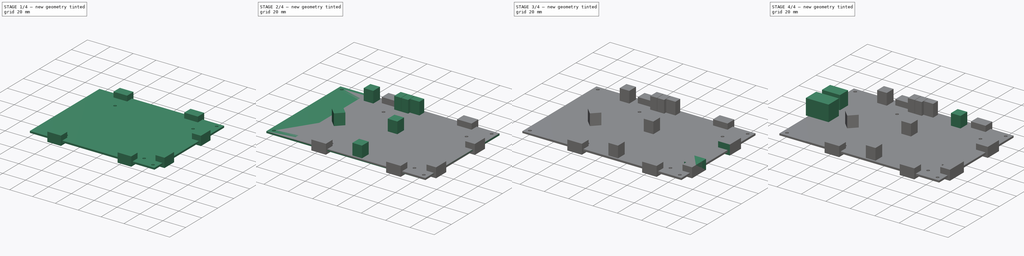
[diagram: build sequence overview — one tinted view per stage of 4, left to right]
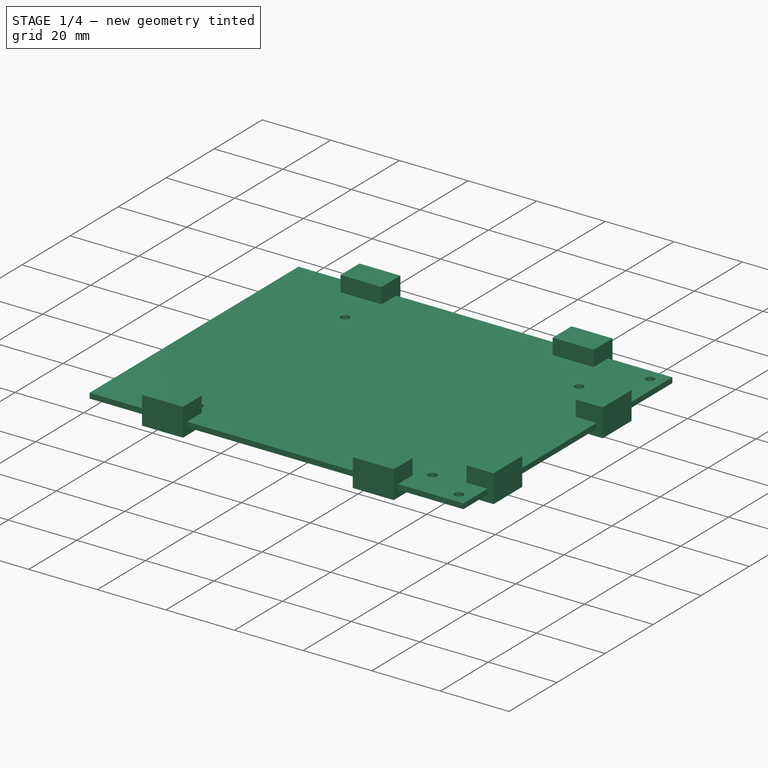
[diagram: stage 1 of 4 — iso view after this stage's code; geometry added in this stage tinted green]
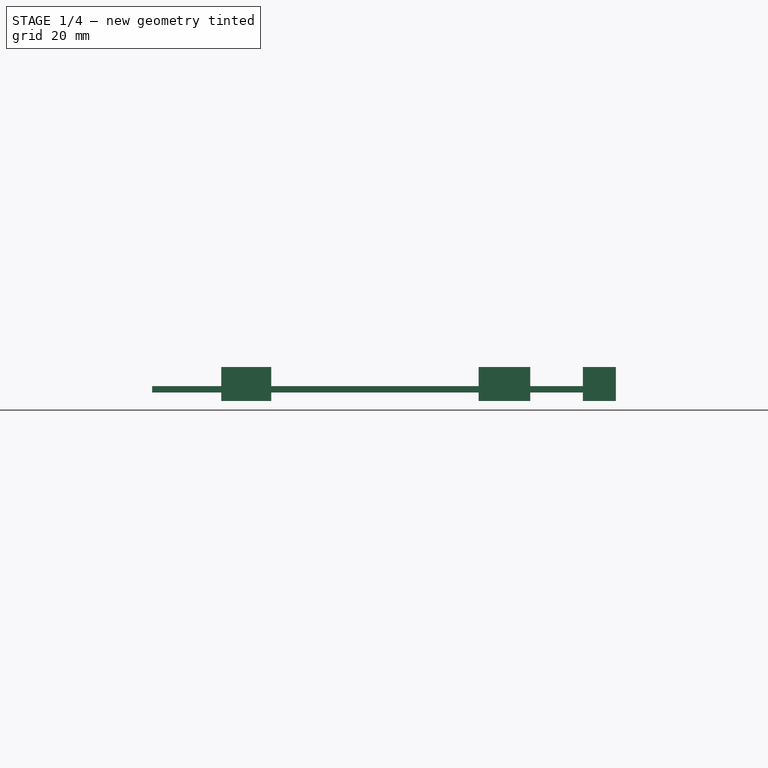
[diagram: stage 1 of 4 — front view after this stage's code; geometry added in this stage tinted green]
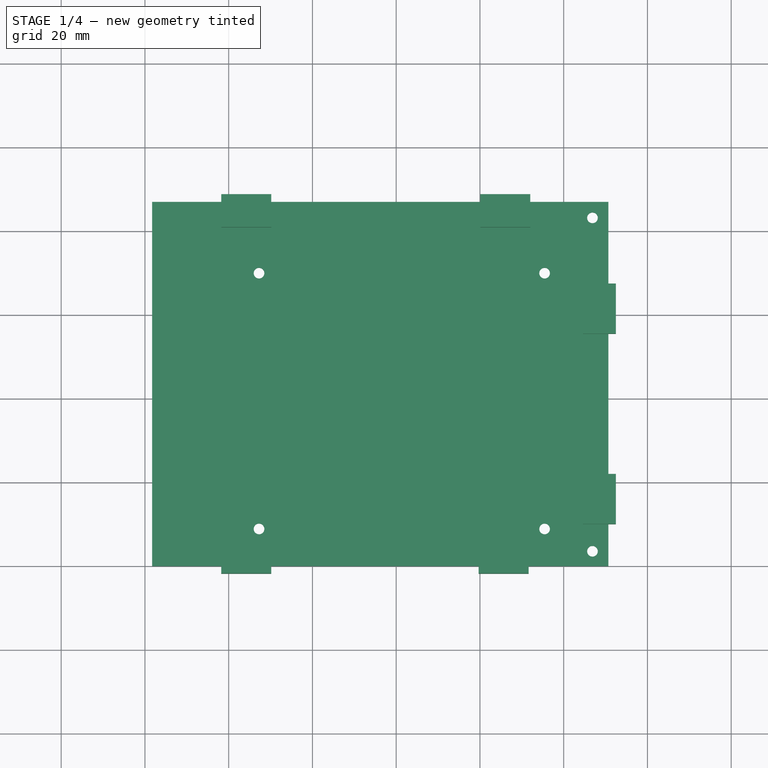
[diagram: stage 1 of 4 — top view after this stage's code; geometry added in this stage tinted green]
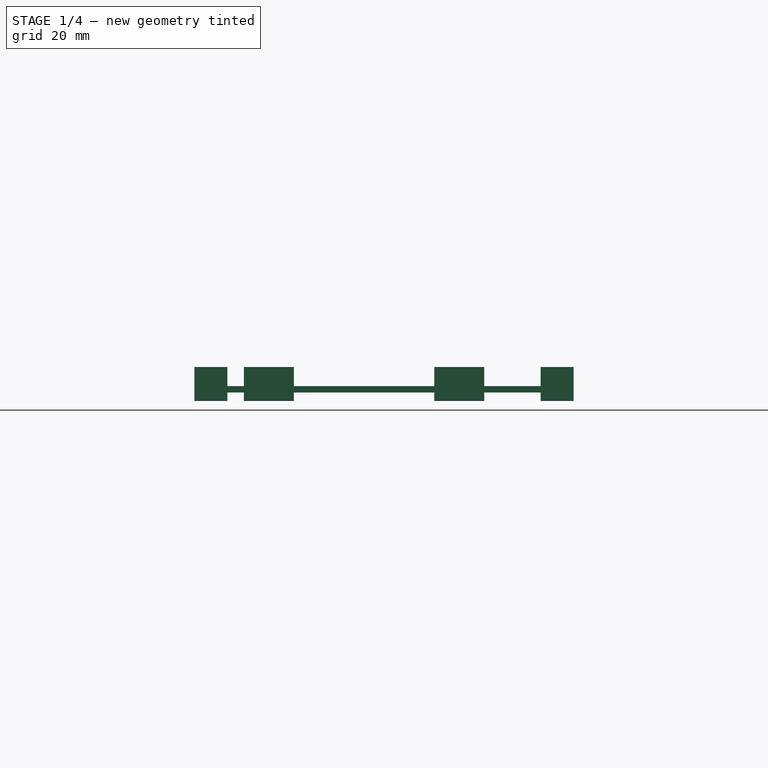
[diagram: stage 1 of 4 — right view after this stage's code; geometry added in this stage tinted green]
FCSTD DOCUMENT  (FreeCAD 1.0R38641 +678 (Git))
Label: BladeRFCase
License: All rights reserved
LicenseURL: https://en.wikipedia.org/wiki/All_rights_reserved
objects: PartDesign::Pad×11, Sketcher::SketchObject×9, PartDesign::Body×2
note: 53 computed .brp shape members not serialized (recipe doc carries the construction recipe); baked Part::Feature solids carry a one-line shape summary decoded from their .brp

FEATURE [PartDesign::Body] Body  label="ReferenceBody-x40"
  AllowCompound = false
  Group = -> [Sketch,Pad,Sketch001,Pad001,Pad002,Sketch002,Pad003,Sketch003,Pad004,Sketch004,Pad005]
  Origin = -> Origin
  Tip = -> Pad005
FEATURE [Sketcher::SketchObject] Sketch005
  ArcFitTolerance = 1e-06
  AttachmentSupport = -> [XY_Plane001]
  FullyConstrained = true
  MakeInternals = false
  MapMode = 5
  sketch-geometry (10):
    g0: LineSegment StartX=21.717 StartY=86.995 StartZ=0 EndX=21.717 EndY=0 EndZ=0
    g1: LineSegment StartX=21.717 StartY=0 StartZ=0 EndX=130.683 EndY=0 EndZ=0
    g2: LineSegment StartX=130.683 StartY=0 StartZ=0 EndX=130.683 EndY=86.995 EndZ=0
    g3: LineSegment StartX=130.683 StartY=86.995 StartZ=0 EndX=21.717 EndY=86.995 EndZ=0
    g4: Circle CenterX=115.443 CenterY=8.89 CenterZ=0 NormalX=0 NormalY=0 NormalZ=1 AngleXU=0 Radius=1.27
    g5: Circle CenterX=115.443 CenterY=69.977 CenterZ=0 NormalX=0 NormalY=0 NormalZ=1 AngleXU=0 Radius=1.27
    g6: Circle CenterX=47.244 CenterY=69.977 CenterZ=0 NormalX=0 NormalY=0 NormalZ=1 AngleXU=0 Radius=1.27
    g7: Circle CenterX=47.244 CenterY=8.89 CenterZ=0 NormalX=0 NormalY=0 NormalZ=1 AngleXU=0 Radius=1.27
    g8: Circle CenterX=126.873 CenterY=83.185 CenterZ=0 NormalX=0 NormalY=0 NormalZ=1 AngleXU=0 Radius=1.27
    g9: Circle CenterX=126.873 CenterY=3.556 CenterZ=0 NormalX=0 NormalY=0 NormalZ=1 AngleXU=0 Radius=1.27
  constraints (30):
    c: Coincident(g0,g1)
    c: Coincident(g1,g2)
    c: Coincident(g2,g3)
    c: Coincident(g3,g0)
    c: Vertical(g0)
    c: Vertical(g2)
    c: Horizontal(g1)
    c: Horizontal(g3)
    c: Vertical(g5,g4)
    c: Vertical(g7,g6)
    c: Horizontal(g6,g5)
    c: Horizontal(g4,g7)
    c: Equal(g7,g6)
    c: DistanceX(g6,g5) = 68.199
    c: DistanceY(g7,g6) = 61.087
    c: Diameter(g6) = 2.54
    c: Equal(g5,g6)
    c: Equal(g7,g4)
    c: DistanceX(g3,g3) = 108.966
    c: DistanceY(g2,g2) = 86.995
    c: Equal(g9,g4)
    c: Equal(g8,g5)
    c: DistanceX(g5,g8) = 11.43
    c: DistanceY(g5,g8) = 13.208
    c: Vertical(g9,g8)
    c: DistanceY(g9,g8) = 79.629
    c: DistanceY(g8,g2) = 3.81
    c: DistanceX(g8,g2) = 3.81
    c: DistanceX(g-1,g1) = 130.683
    c: PointOnObject(g1,g-1)
FEATURE [PartDesign::Pad] Pad006  label="PRB-RF4"
  Direction = (0,0,1)
  Length = 1.524
  Length2 = 10
  Profile = -> Sketch005
  ReferenceAxis = -> Sketch005 [N_Axis]
  Refine = true
  Suppressed = false
  Type = 0
FEATURE [Sketcher::SketchObject] Sketch006
  ArcFitTolerance = 1e-06
  AttachmentSupport = -> [Pad006]
  ExternalGeometry = -> [Pad006]
  FullyConstrained = true
  MakeInternals = false
  MapMode = 5
  Placement = pos=(0,0,1.524) rot=(0,0,1;0rad)
  sketch-geometry (27):
    g0: LineSegment StartX=38.227 StartY=88.773 StartZ=0 EndX=38.227 EndY=80.899 EndZ=0
    g1: LineSegment StartX=38.227 StartY=80.899 StartZ=0 EndX=50.165 EndY=80.899 EndZ=0
    g2: LineSegment StartX=50.165 StartY=80.899 StartZ=0 EndX=50.165 EndY=88.773 EndZ=0
    g3: LineSegment StartX=50.165 StartY=88.773 StartZ=0 EndX=38.227 EndY=88.773 EndZ=0
    g4: LineSegment StartX=100.076 StartY=88.773 StartZ=0 EndX=100.076 EndY=80.899 EndZ=0
    g5: LineSegment StartX=100.076 StartY=80.899 StartZ=0 EndX=112.014 EndY=80.899 EndZ=0
    g6: LineSegment StartX=112.014 StartY=80.899 StartZ=0 EndX=112.014 EndY=88.773 EndZ=0
    g7: LineSegment StartX=112.014 StartY=88.773 StartZ=0 EndX=100.076 EndY=88.773 EndZ=0
    g8: LineSegment StartX=124.587 StartY=67.437 StartZ=0 EndX=124.587 EndY=55.499 EndZ=0
    g9: LineSegment StartX=124.587 StartY=55.499 StartZ=0 EndX=132.461 EndY=55.499 EndZ=0
    g10: LineSegment StartX=132.461 StartY=55.499 StartZ=0 EndX=132.461 EndY=67.437 EndZ=0
    g11: LineSegment StartX=132.461 StartY=67.437 StartZ=0 EndX=124.587 EndY=67.437 EndZ=0
    g12: LineSegment StartX=124.587 StartY=21.971 StartZ=0 EndX=124.587 EndY=10.033 EndZ=0
    g13: LineSegment StartX=124.587 StartY=10.033 StartZ=0 EndX=132.461 EndY=10.033 EndZ=0
    g14: LineSegment StartX=132.461 StartY=10.033 StartZ=0 EndX=132.461 EndY=21.971 EndZ=0
    g15: LineSegment StartX=132.461 StartY=21.971 StartZ=0 EndX=124.587 EndY=21.971 EndZ=0
    g16: LineSegment StartX=99.695 StartY=6.096 StartZ=0 EndX=99.695 EndY=-1.778 EndZ=0
    g17: LineSegment StartX=99.695 StartY=-1.778 StartZ=0 EndX=111.633 EndY=-1.778 EndZ=0
    g18: LineSegment StartX=111.633 StartY=-1.778 StartZ=0 EndX=111.633 EndY=6.096 EndZ=0
    g19: LineSegment StartX=111.633 StartY=6.096 StartZ=0 EndX=99.695 EndY=6.096 EndZ=0
    g20: LineSegment StartX=38.227 StartY=6.096 StartZ=0 EndX=38.227 EndY=-1.778 EndZ=0
    g21: LineSegment StartX=38.227 StartY=-1.778 StartZ=0 EndX=50.165 EndY=-1.778 EndZ=0
    g22: LineSegment StartX=50.165 StartY=-1.778 StartZ=0 EndX=50.165 EndY=6.096 EndZ=0
    g23: LineSegment StartX=50.165 StartY=6.096 StartZ=0 EndX=38.227 EndY=6.096 EndZ=0
    g24: LineSegment [constr] StartX=111.633 StartY=-1.778 StartZ=0 EndX=111.633 EndY=0 EndZ=0
    g25: LineSegment [constr] StartX=38.227 StartY=88.773 StartZ=0 EndX=38.227 EndY=86.995 EndZ=0
    g26: LineSegment [constr] StartX=132.461 StartY=67.437 StartZ=0 EndX=130.683 EndY=67.437 EndZ=0
  constraints (81):
    c: Coincident(g0,g1)
    c: Coincident(g1,g2)
    c: Coincident(g2,g3)
    c: Coincident(g3,g0)
    c: Vertical(g0)
    c: Vertical(g2)
    c: Horizontal(g1)
    c: Horizontal(g3)
    c: Coincident(g4,g5)
    c: Coincident(g5,g6)
    c: Coincident(g6,g7)
    c: Coincident(g7,g4)
    c: Vertical(g4)
    c: Vertical(g6)
    c: Horizontal(g5)
    c: Horizontal(g7)
    c: Coincident(g8,g9)
    c: Coincident(g9,g10)
    c: Coincident(g10,g11)
    c: Coincident(g11,g8)
    c: Vertical(g8)
    c: Vertical(g10)
    c: Horizontal(g9)
    c: Horizontal(g11)
    c: Coincident(g12,g13)
    c: Coincident(g13,g14)
    c: Coincident(g14,g15)
    c: Coincident(g15,g12)
    c: Vertical(g12)
    c: Vertical(g14)
    c: Horizontal(g13)
    c: Horizontal(g15)
    c: Coincident(g16,g17)
    c: Coincident(g17,g18)
    c: Coincident(g18,g19)
    c: Coincident(g19,g16)
    c: Vertical(g16)
    c: Vertical(g18)
    c: Horizontal(g17)
    c: Horizontal(g19)
    c: Coincident(g20,g21)
    c: Coincident(g21,g22)
    c: Coincident(g22,g23)
    c: Coincident(g23,g20)
    c: Vertical(g20)
    c: Vertical(g22)
    c: Horizontal(g21)
    c: Horizontal(g23)
    c: DistanceY(g10,g10) = 11.938
    c: DistanceX(g11,g11) = 7.874
    c: Equal(g11,g4)
    c: Equal(g4,g0)
    c: Equal(g0,g18)
    c: Equal(g18,g22)
    c: Equal(g21,g17)
    c: Equal(g17,g14)
    c: Equal(g14,g10)
    c: Equal(g10,g7)
    c: Equal(g7,g3)
    c: Equal(g11,g15)
    c: Horizontal(g17,g21)
    c: Coincident(g24,g17)
    c: PointOnObject(g24,g-5)
    c: Vertical(g24)
    c: Horizontal(g0,g4)
    c: Vertical(g10,g14)
    c: Coincident(g25,g0)
    c: PointOnObject(g25,g-3)
    c: Vertical(g25)
    c: Coincident(g26,g10)
    c: PointOnObject(g26,g-4)
    c: Horizontal(g26)
    c: Equal(g24,g25)
    c: Equal(g25,g26)
    c: Distance(g9,g-4) = 1.778
    c: DistanceY(g-5,g13) = 10.033
    c: DistanceY(g12,g8) = 33.528
    c: DistanceX(g1,g4) = 49.911
    c: DistanceX(g22,g16) = 49.53
    c: DistanceX(g-5,g20) = 16.51
    c: Vertical(g20,g0)
FEATURE [PartDesign::Pad] Pad007  label="SMA-H-A"
  BaseFeature = -> Pad006
  Direction = (0,0,1)
  Length = 4.572
  Length2 = 10
  Profile = -> Sketch006
  ReferenceAxis = -> Sketch006 [N_Axis]
  Refine = true
  Suppressed = false
  Type = 0
FEATURE [PartDesign::Pad] Pad008  label="SMA-H-B"
  BaseFeature = -> Pad007
  Direction = (0,0,1)
  Length = 3.556
  Length2 = 10
  Profile = -> Sketch006
  ReferenceAxis = -> Sketch006 [N_Axis]
  Refine = true
  Reversed = true
  Suppressed = false
  Type = 0
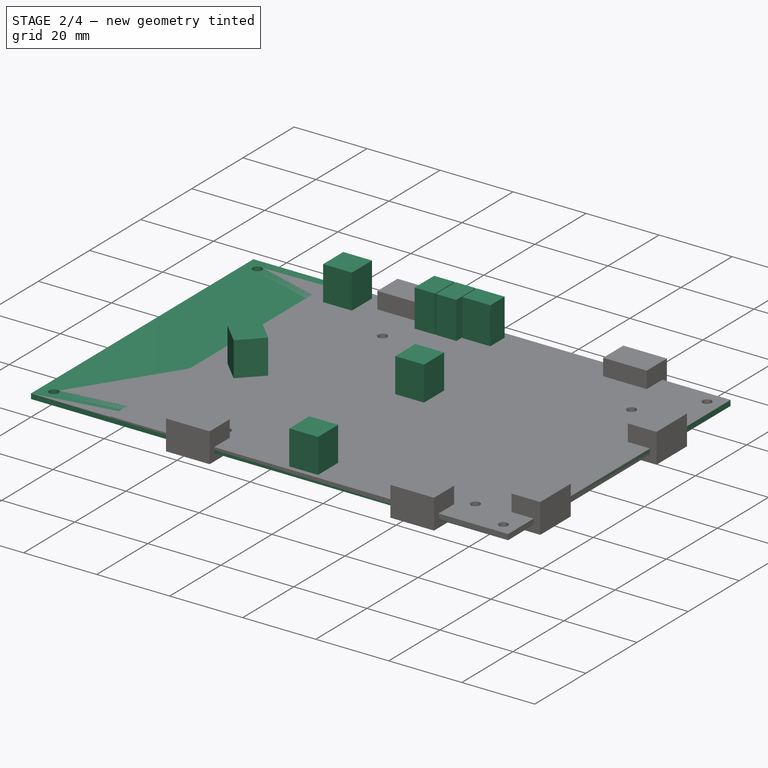
[diagram: stage 2 of 4 — iso view after this stage's code; geometry added in this stage tinted green]
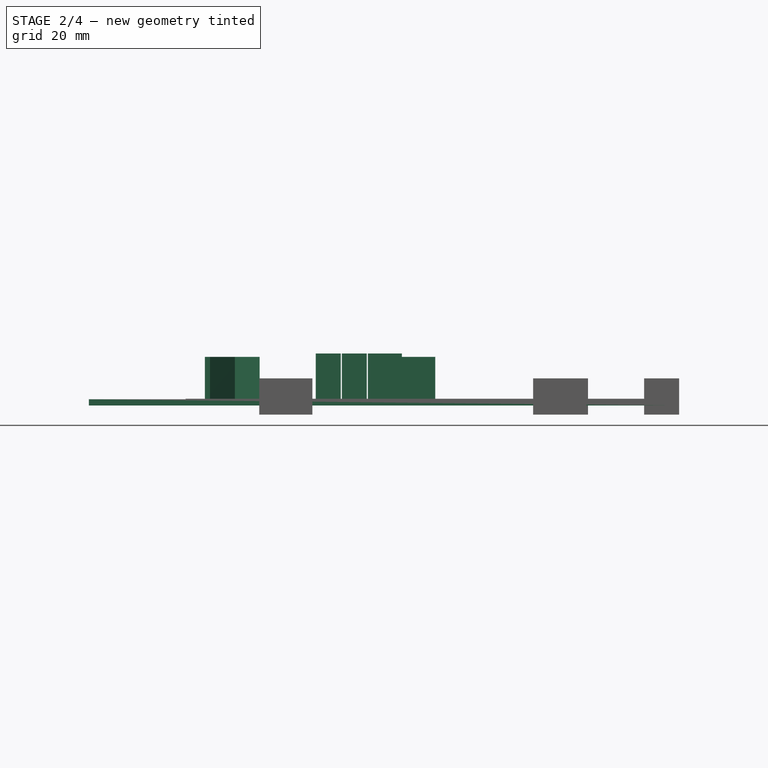
[diagram: stage 2 of 4 — front view after this stage's code; geometry added in this stage tinted green]
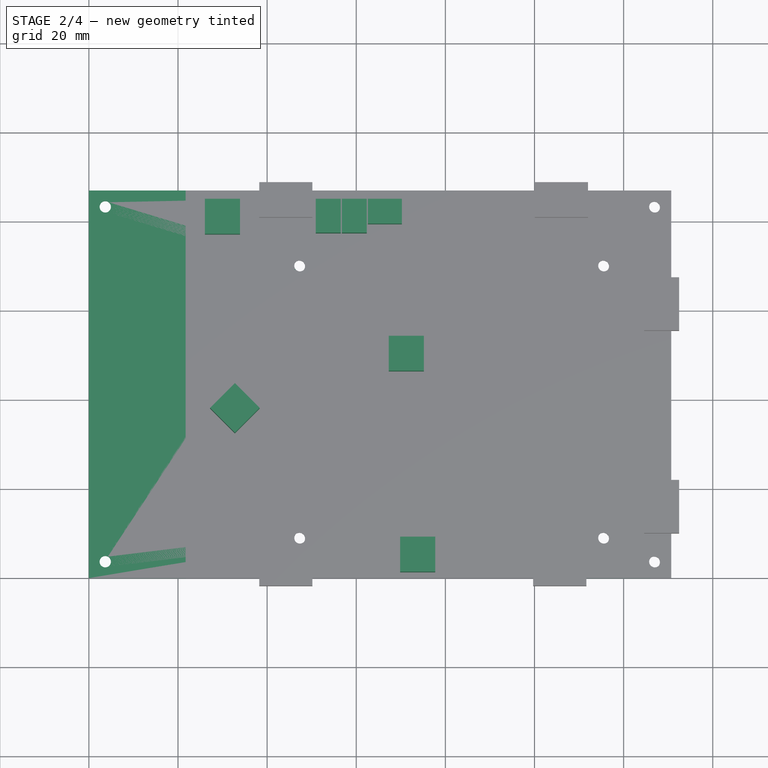
[diagram: stage 2 of 4 — top view after this stage's code; geometry added in this stage tinted green]
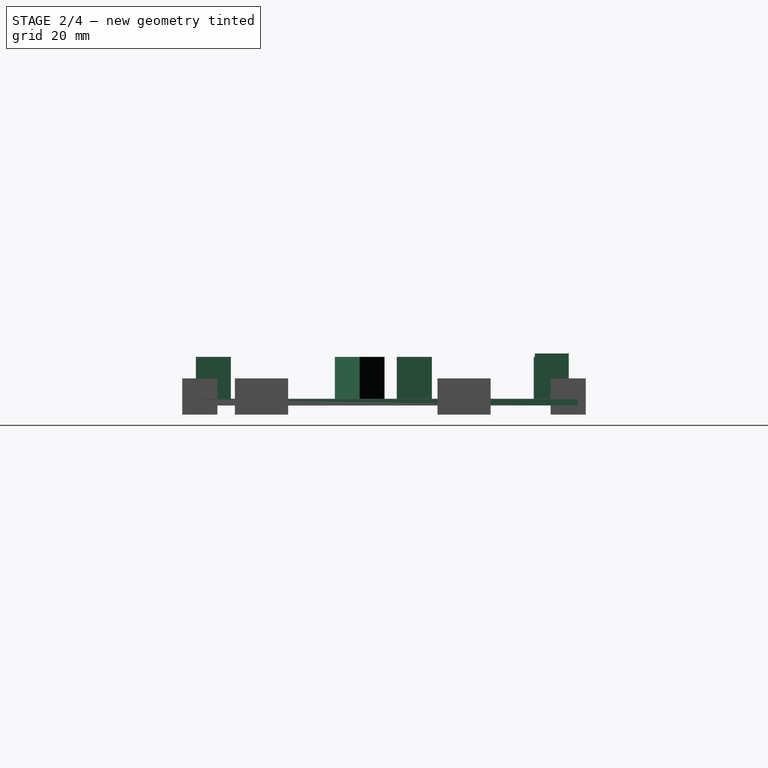
[diagram: stage 2 of 4 — right view after this stage's code; geometry added in this stage tinted green]
FEATURE [Sketcher::SketchObject] Sketch
  ArcFitTolerance = 1e-06
  AttachmentSupport = -> [XY_Plane]
  FullyConstrained = true
  MakeInternals = false
  MapMode = 5
  sketch-geometry (16):
    g0: LineSegment StartX=0 StartY=0 StartZ=0 EndX=130.683 EndY=0 EndZ=0
    g1: LineSegment StartX=130.683 StartY=0 StartZ=0 EndX=130.683 EndY=86.995 EndZ=0
    g2: LineSegment StartX=130.683 StartY=86.995 StartZ=0 EndX=0 EndY=86.995 EndZ=0
    g3: LineSegment StartX=0 StartY=86.995 StartZ=0 EndX=0 EndY=0 EndZ=0
    g4: Circle CenterX=3.683 CenterY=83.312 CenterZ=0 NormalX=0 NormalY=0 NormalZ=1 AngleXU=0 Radius=1.27
    g5: Circle CenterX=127 CenterY=83.312 CenterZ=0 NormalX=0 NormalY=0 NormalZ=1 AngleXU=0 Radius=1.27
    g6: Circle CenterX=3.683 CenterY=3.683 CenterZ=0 NormalX=0 NormalY=0 NormalZ=1 AngleXU=0 Radius=1.27
    g7: Circle CenterX=127 CenterY=3.683 CenterZ=0 NormalX=0 NormalY=0 NormalZ=1 AngleXU=0 Radius=1.27
    g8: Circle CenterX=115.57 CenterY=9.017 CenterZ=0 NormalX=0 NormalY=0 NormalZ=1 AngleXU=0 Radius=1.27
    g9: Circle CenterX=115.57 CenterY=70.104 CenterZ=0 NormalX=0 NormalY=0 NormalZ=1 AngleXU=0 Radius=1.27
    g10: Circle CenterX=47.371 CenterY=70.104 CenterZ=0 NormalX=0 NormalY=0 NormalZ=1 AngleXU=0 Radius=1.27
    g11: Circle CenterX=47.371 CenterY=9.017 CenterZ=0 NormalX=0 NormalY=0 NormalZ=1 AngleXU=0 Radius=1.27
    g12: GeomPoint X=65.3415 Y=86.995 Z=0
    g13: GeomPoint X=0 Y=43.4975 Z=0
    g14: LineSegment [constr] StartX=65.3415 StartY=86.995 StartZ=0 EndX=65.3415 EndY=0 EndZ=0
    g15: GeomPoint [constr] X=65.3415 Y=43.4975 Z=0
  constraints (39):
    c: Coincident(g0,g1)
    c: Coincident(g1,g2)
    c: Coincident(g2,g3)
    c: Coincident(g3,g0)
    c: Horizontal(g0)
    c: Horizontal(g2)
    c: Vertical(g1)
    c: Vertical(g3)
    c: Coincident(g0,g-1)
    c: DistanceX(g2,g2) = 130.683
    c: DistanceY(g3,g3) = 86.995
    c: Horizontal(g5,g4)
    c: Horizontal(g6,g7)
    c: Vertical(g4,g6)
    c: Vertical(g7,g5)
    c: Vertical(g9,g8)
    c: Vertical(g11,g10)
    c: Horizontal(g10,g9)
    c: Horizontal(g8,g11)
    c: Equal(g11,g10)
    c: Equal(g10,g4)
    c: Equal(g4,g6)
    c: Equal(g6,g8)
    c: Equal(g8,g5)
    c: Equal(g5,g7)
    c: Equal(g7,g9)
    c: Diameter(g4) = 2.54
    c: DistanceX(g4,g5) = 123.317
    c: DistanceY(g6,g4) = 79.629
    c: Symmetric(g2,g2,g12)
    c: Symmetric(g3,g3,g13)
    c: Coincident(g14,g12)
    c: Symmetric(g0,g0,g14)
    c: Symmetric(g14,g14,g15)
    c: Symmetric(g4,g7,g15)
    c: DistanceX(g10,g9) = 68.199
    c: DistanceY(g11,g10) = 61.087
    c: DistanceX(g9,g5) = 11.43
    c: DistanceY(g9,g5) = 13.208
FEATURE [PartDesign::Pad] Pad  label="PCB-FR4"
  Direction = (0,0,1)
  Length = 1.397
  Length2 = 10
  Profile = -> Sketch
  ReferenceAxis = -> Sketch [N_Axis]
  Refine = true
  Suppressed = false
  Type = 0
FEATURE [Sketcher::SketchObject] Sketch007
  ArcFitTolerance = 1e-06
  AttachmentSupport = -> [Pad008]
  ExternalGeometry = -> [Pad008]
  FullyConstrained = true
  MakeInternals = false
  MapMode = 5
  Placement = pos=(0,0,1.524) rot=(0,0,1;0rad)
  sketch-geometry (16):
    g0: LineSegment StartX=26.035 StartY=84.963 StartZ=0 EndX=26.035 EndY=77.089 EndZ=0
    g1: LineSegment StartX=26.035 StartY=77.089 StartZ=0 EndX=33.909 EndY=77.089 EndZ=0
    g2: LineSegment StartX=33.909 StartY=77.089 StartZ=0 EndX=33.909 EndY=84.963 EndZ=0
    g3: LineSegment StartX=33.909 StartY=84.963 StartZ=0 EndX=26.035 EndY=84.963 EndZ=0
    g4: LineSegment StartX=67.31 StartY=54.229 StartZ=0 EndX=67.31 EndY=46.355 EndZ=0
    g5: LineSegment StartX=67.31 StartY=46.355 StartZ=0 EndX=75.184 EndY=46.355 EndZ=0
    g6: LineSegment StartX=75.184 StartY=46.355 StartZ=0 EndX=75.184 EndY=54.229 EndZ=0
    g7: LineSegment StartX=75.184 StartY=54.229 StartZ=0 EndX=67.31 EndY=54.229 EndZ=0
    g8: LineSegment StartX=69.85 StartY=9.144 StartZ=0 EndX=69.85 EndY=1.27 EndZ=0
    g9: LineSegment StartX=69.85 StartY=1.27 StartZ=0 EndX=77.724 EndY=1.27 EndZ=0
    g10: LineSegment StartX=77.724 StartY=1.27 StartZ=0 EndX=77.724 EndY=9.144 EndZ=0
    g11: LineSegment StartX=77.724 StartY=9.144 StartZ=0 EndX=69.85 EndY=9.144 EndZ=0
    g12: LineSegment StartX=27.1982 StartY=38.029 StartZ=0 EndX=32.766 EndY=32.4612 EndZ=0
    g13: LineSegment StartX=32.766 StartY=32.4612 StartZ=0 EndX=38.3338 EndY=38.029 EndZ=0
    g14: LineSegment StartX=38.3338 StartY=38.029 StartZ=0 EndX=32.766 EndY=43.5967 EndZ=0
    g15: LineSegment StartX=32.766 StartY=43.5967 StartZ=0 EndX=27.1982 EndY=38.029 EndZ=0
  constraints (48):
    c: Coincident(g0,g1)
    c: Coincident(g1,g2)
    c: Coincident(g2,g3)
    c: Coincident(g3,g0)
    c: Vertical(g0)
    c: Vertical(g2)
    c: Horizontal(g1)
    c: Horizontal(g3)
    c: Coincident(g4,g5)
    c: Coincident(g5,g6)
    c: Coincident(g6,g7)
    c: Coincident(g7,g4)
    c: Vertical(g4)
    c: Vertical(g6)
    c: Horizontal(g5)
    c: Horizontal(g7)
    c: Coincident(g8,g9)
    c: Coincident(g9,g10)
    c: Coincident(g10,g11)
    c: Coincident(g11,g8)
    c: Vertical(g8)
    c: Vertical(g10)
    c: Horizontal(g9)
    c: Horizontal(g11)
    c: Equal(g3,g0)
    c: Equal(g7,g4)
    c: Equal(g11,g8)
    c: DistanceX(g3,g3) = 7.874
    c: Equal(g7,g3)
    c: DistanceY(g9,g5) = 45.085
    c: Coincident(g12,g13)
    c: Coincident(g13,g14)
    c: Coincident(g14,g15)
    c: Coincident(g15,g12)
    c: Equal(g15,g12)
    c: Perpendicular(g15,g14)
    c: Perpendicular(g12,g13)
    c: Perpendicular(g14,g13)
    c: Equal(g14,g3)
    c: Vertical(g12,g14)
    c: Distance(g0,g-3) = 2.032
    c: Distance(g8,g-4) = 1.27
    c: Equal(g11,g7)
    c: Distance(g9,g-5) = 21.971
    c: Distance(g12,g-6) = 11.049
    c: Distance(g0,g-6) = 4.318
    c: Distance(g12,g-1) = 32.4612
    c: DistanceX(g5,g10) = 2.54
FEATURE [PartDesign::Pad] Pad009  label="SMA-V"
  BaseFeature = -> Pad008
  Direction = (0,0,1)
  Length = 9.398
  Length2 = 10
  Profile = -> Sketch007
  ReferenceAxis = -> Sketch007 [N_Axis]
  Refine = true
  Suppressed = false
  Type = 0
FEATURE [Sketcher::SketchObject] Sketch008
  ArcFitTolerance = 1e-06
  AttachmentSupport = -> [Pad009]
  ExternalGeometry = -> [Pad009]
  FullyConstrained = true
  MakeInternals = false
  MapMode = 5
  Placement = pos=(0,0,1.524) rot=(0,0,1;0rad)
  sketch-geometry (12):
    g0: LineSegment StartX=50.927 StartY=84.963 StartZ=0 EndX=50.927 EndY=77.343 EndZ=0
    g1: LineSegment StartX=50.927 StartY=77.343 StartZ=0 EndX=56.515 EndY=77.343 EndZ=0
    g2: LineSegment StartX=56.515 StartY=77.343 StartZ=0 EndX=56.515 EndY=84.963 EndZ=0
    g3: LineSegment StartX=56.515 StartY=84.963 StartZ=0 EndX=50.927 EndY=84.963 EndZ=0
    g4: LineSegment StartX=56.769 StartY=84.963 StartZ=0 EndX=56.769 EndY=77.343 EndZ=0
    g5: LineSegment StartX=56.769 StartY=77.343 StartZ=0 EndX=62.357 EndY=77.343 EndZ=0
    g6: LineSegment StartX=62.357 StartY=77.343 StartZ=0 EndX=62.357 EndY=84.963 EndZ=0
    g7: LineSegment StartX=62.357 StartY=84.963 StartZ=0 EndX=56.769 EndY=84.963 EndZ=0
    g8: LineSegment StartX=62.611 StartY=84.963 StartZ=0 EndX=62.611 EndY=79.375 EndZ=0
    g9: LineSegment StartX=62.611 StartY=79.375 StartZ=0 EndX=70.231 EndY=79.375 EndZ=0
    g10: LineSegment StartX=70.231 StartY=79.375 StartZ=0 EndX=70.231 EndY=84.963 EndZ=0
    g11: LineSegment StartX=70.231 StartY=84.963 StartZ=0 EndX=62.611 EndY=84.963 EndZ=0
  constraints (36):
    c: Coincident(g0,g1)
    c: Coincident(g1,g2)
    c: Coincident(g2,g3)
    c: Coincident(g3,g0)
    c: Vertical(g0)
    c: Vertical(g2)
    c: Horizontal(g1)
    c: Horizontal(g3)
    c: Coincident(g4,g5)
    c: Coincident(g5,g6)
    c: Coincident(g6,g7)
    c: Coincident(g7,g4)
    c: Vertical(g4)
    c: Vertical(g6)
    c: Horizontal(g5)
    c: Horizontal(g7)
    c: Coincident(g8,g9)
    c: Coincident(g9,g10)
    c: Coincident(g10,g11)
    c: Coincident(g11,g8)
    c: Vertical(g8)
    c: Vertical(g10)
    c: Horizontal(g9)
    c: Horizontal(g11)
    c: Equal(g3,g7)
    c: Equal(g7,g10)
    c: Equal(g2,g6)
    c: Equal(g6,g11)
    c: DistanceX(g3,g3) = 5.588
    c: DistanceX(g11,g11) = 7.62
    c: DistanceX(g1,g4) = 0.254
    c: DistanceX(g5,g8) = 0.254
    c: Horizontal(g8,g6)
    c: Horizontal(g4,g2)
    c: Distance(g0,g-3) = 2.032
    c: Distance(g0,g-4) = 29.21
FEATURE [PartDesign::Pad] Pad010  label="GPIO"
  BaseFeature = -> Pad009
  Direction = (0,0,1)
  Length = 10.16
  Length2 = 10
  Profile = -> Sketch008
  ReferenceAxis = -> Sketch008 [N_Axis]
  Refine = true
  Suppressed = false
  Type = 0
FEATURE [PartDesign::Body] Body001  label="ReferenceBody-XB200"
  AllowCompound = false
  Group = -> [Sketch005,Pad006,Sketch006,Pad007,Pad008,Sketch007,Pad009,Sketch008,Pad010]
  Origin = -> Origin001
  Placement = pos=(0,0,12.7) rot=(0,0,1;0rad)
  Tip = -> Pad010
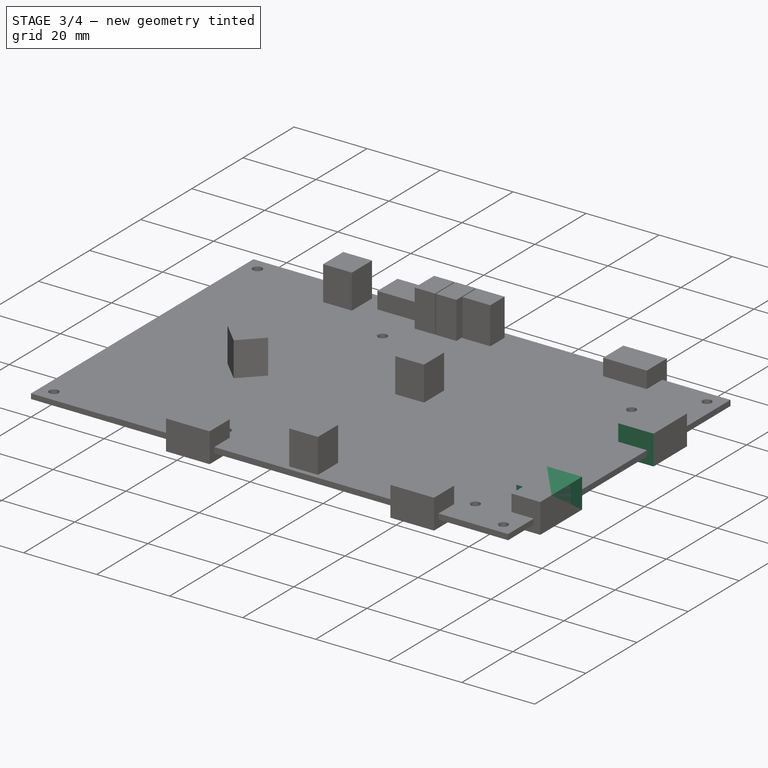
[diagram: stage 3 of 4 — iso view after this stage's code; geometry added in this stage tinted green]
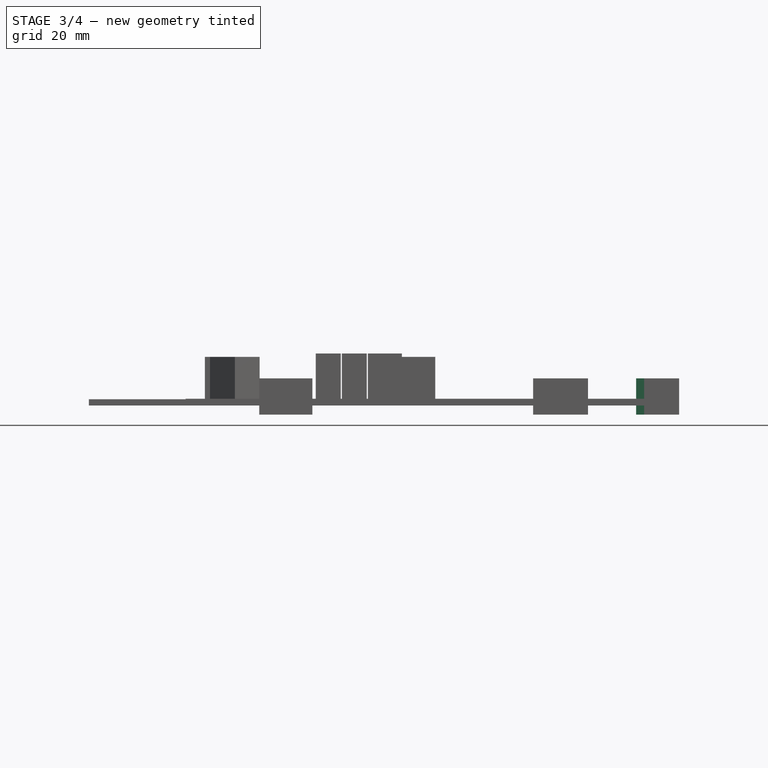
[diagram: stage 3 of 4 — front view after this stage's code; geometry added in this stage tinted green]
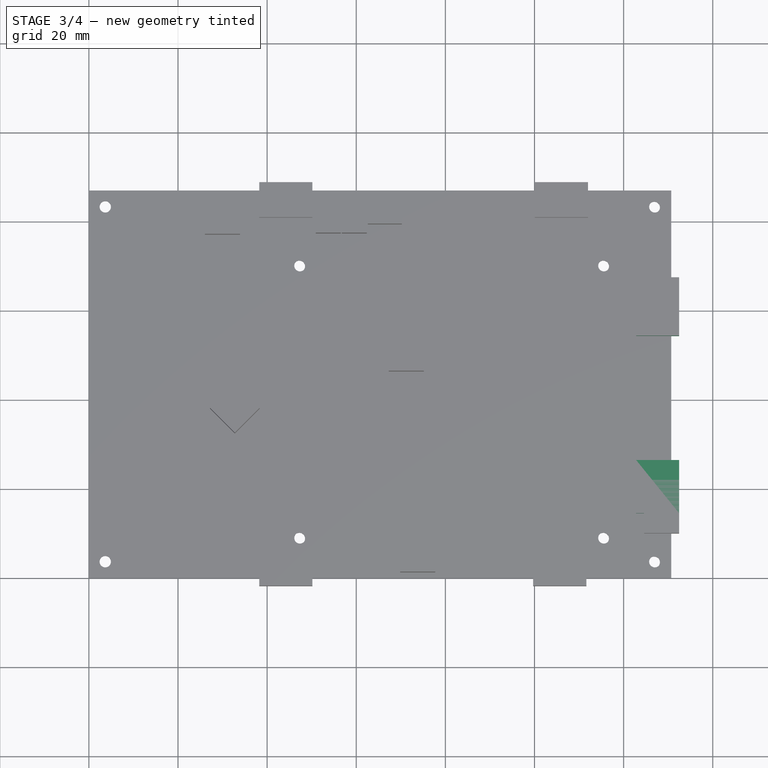
[diagram: stage 3 of 4 — top view after this stage's code; geometry added in this stage tinted green]
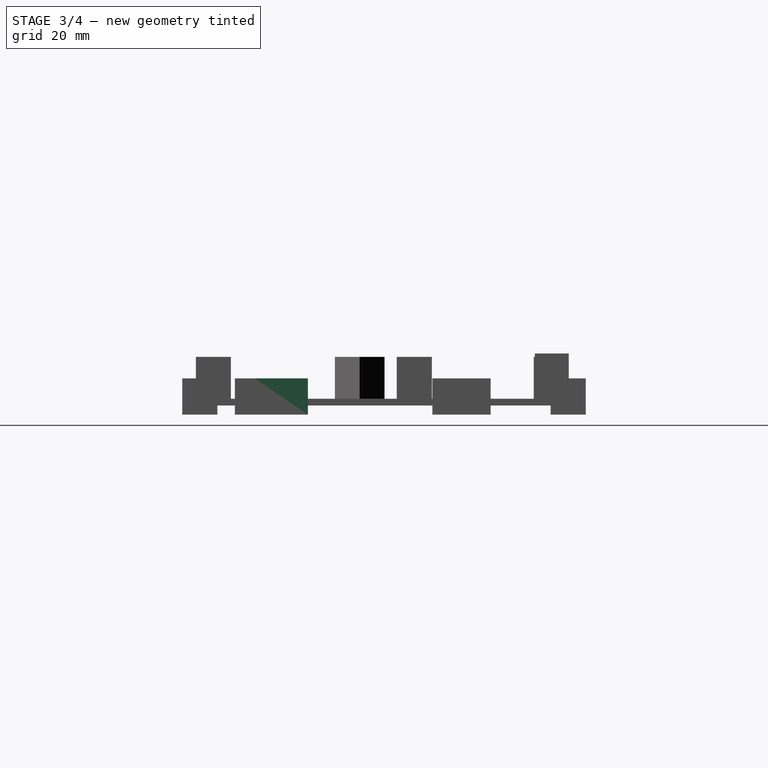
[diagram: stage 3 of 4 — right view after this stage's code; geometry added in this stage tinted green]
FEATURE [Sketcher::SketchObject] Sketch001
  ArcFitTolerance = 1e-06
  AttachmentSupport = -> [Pad]
  ExternalGeometry = -> [Pad]
  FullyConstrained = true
  MakeInternals = false
  MapMode = 5
  Placement = pos=(0,0,1.397) rot=(0,0,1;0rad)
  sketch-geometry (8):
    g0: LineSegment StartX=122.809 StartY=66.294 StartZ=0 EndX=122.809 EndY=54.356 EndZ=0
    g1: LineSegment StartX=122.809 StartY=54.356 StartZ=0 EndX=132.461 EndY=54.356 EndZ=0
    g2: LineSegment StartX=132.461 StartY=54.356 StartZ=0 EndX=132.461 EndY=66.294 EndZ=0
    g3: LineSegment StartX=132.461 StartY=66.294 StartZ=0 EndX=122.809 EndY=66.294 EndZ=0
    g4: LineSegment StartX=122.809 StartY=26.416 StartZ=0 EndX=122.809 EndY=14.478 EndZ=0
    g5: LineSegment StartX=122.809 StartY=14.478 StartZ=0 EndX=132.461 EndY=14.478 EndZ=0
    g6: LineSegment StartX=132.461 StartY=14.478 StartZ=0 EndX=132.461 EndY=26.416 EndZ=0
    g7: LineSegment StartX=132.461 StartY=26.416 StartZ=0 EndX=122.809 EndY=26.416 EndZ=0
  constraints (24):
    c: Coincident(g0,g1)
    c: Coincident(g1,g2)
    c: Coincident(g2,g3)
    c: Coincident(g3,g0)
    c: Vertical(g0)
    c: Vertical(g2)
    c: Horizontal(g1)
    c: Horizontal(g3)
    c: Coincident(g4,g5)
    c: Coincident(g5,g6)
    c: Coincident(g6,g7)
    c: Coincident(g7,g4)
    c: Vertical(g4)
    c: Vertical(g6)
    c: Horizontal(g5)
    c: Horizontal(g7)
    c: Equal(g0,g4)
    c: DistanceY(g0,g0) = 11.938
    c: DistanceY(g4,g0) = 39.878
    c: Equal(g3,g7)
    c: Distance(g2,g-3) = 1.778
    c: Distance(g0,g-3) = 7.874
    c: Vertical(g6,g2)
    c: Distance(g4,g-4) = 14.478
FEATURE [PartDesign::Pad] Pad001  label="SMA-PartA"
  BaseFeature = -> Pad
  Direction = (0,0,1)
  Length = 4.699
  Length2 = 10
  Profile = -> Sketch001
  ReferenceAxis = -> Sketch001 [N_Axis]
  Refine = true
  Suppressed = false
  Type = 0
FEATURE [PartDesign::Pad] Pad002  label="SMA-PartB"
  BaseFeature = -> Pad001
  Direction = (0,0,1)
  Length = 3.429
  Length2 = 10
  Profile = -> Sketch001
  ReferenceAxis = -> Sketch001 [N_Axis]
  Refine = true
  Reversed = true
  Suppressed = false
  Type = 0
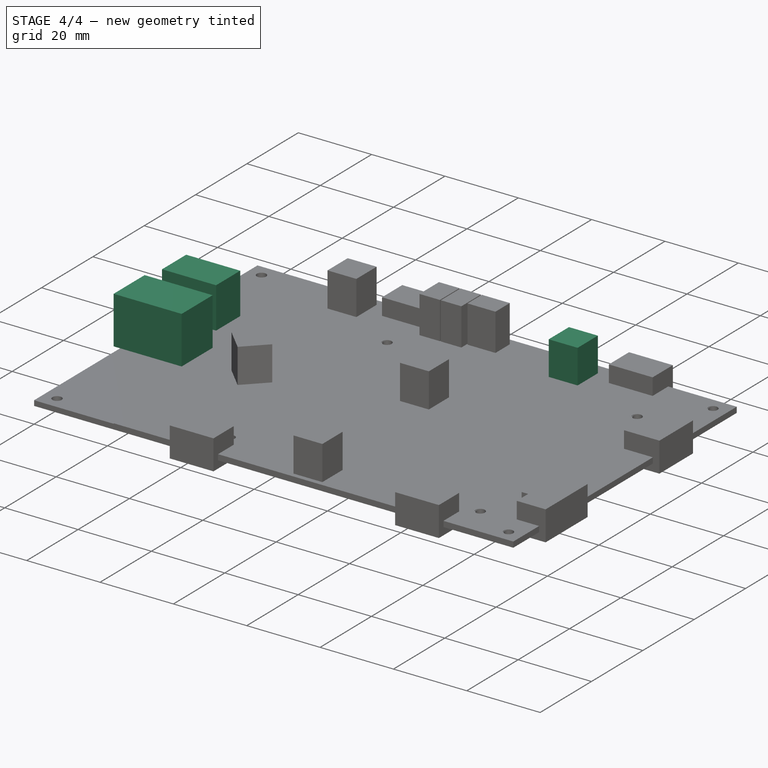
[diagram: stage 4 of 4 — iso view after this stage's code; geometry added in this stage tinted green]
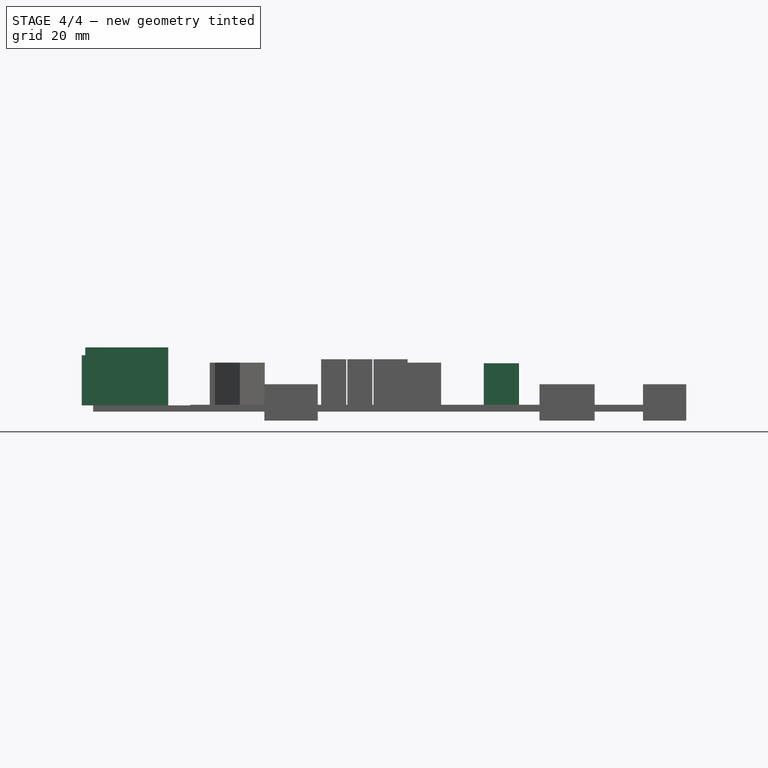
[diagram: stage 4 of 4 — front view after this stage's code; geometry added in this stage tinted green]
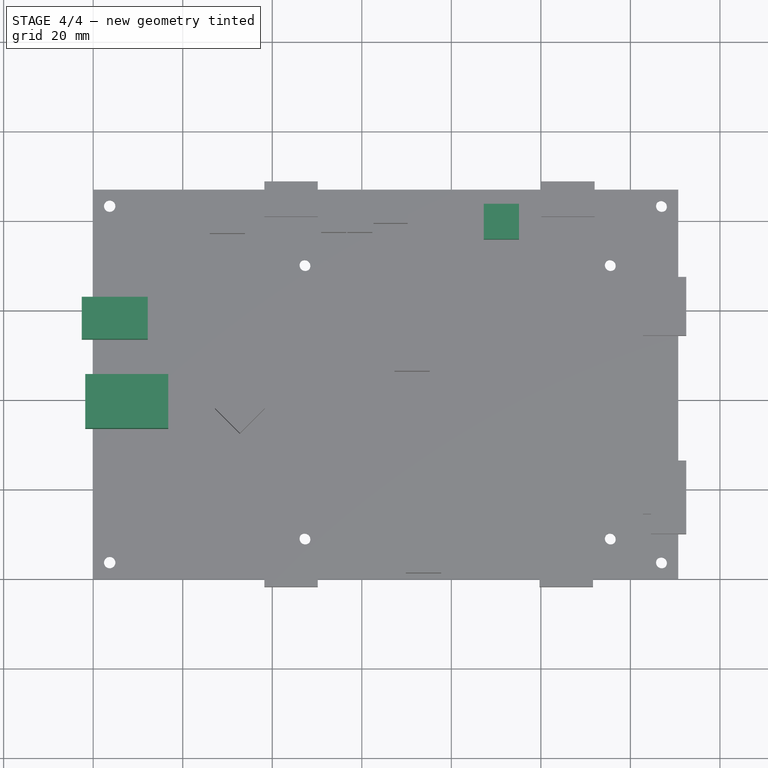
[diagram: stage 4 of 4 — top view after this stage's code; geometry added in this stage tinted green]
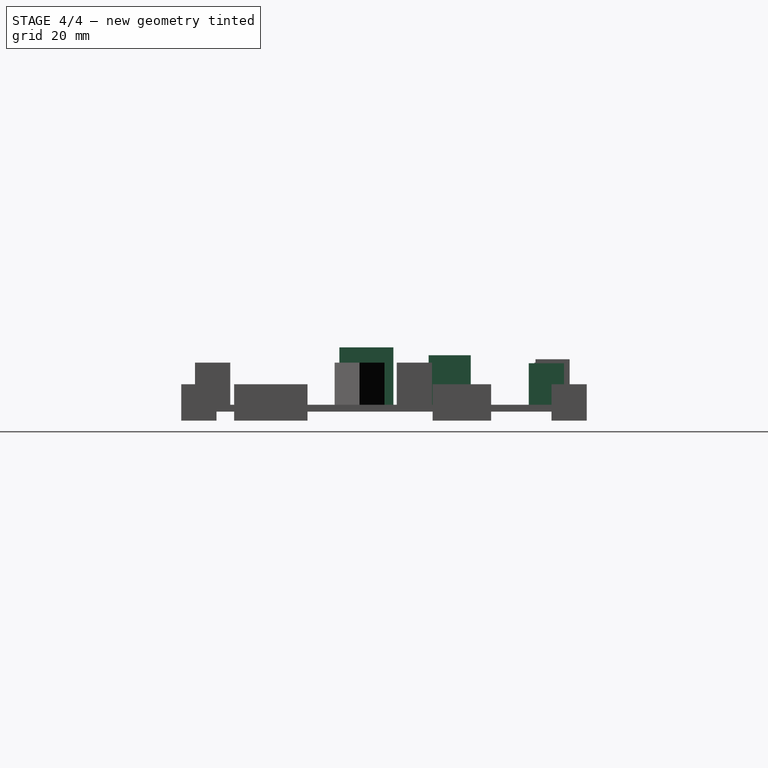
[diagram: stage 4 of 4 — right view after this stage's code; geometry added in this stage tinted green]
FEATURE [Sketcher::SketchObject] Sketch002
  ArcFitTolerance = 1e-06
  AttachmentSupport = -> [Pad002]
  ExternalGeometry = -> [Pad002]
  FullyConstrained = true
  MakeInternals = false
  MapMode = 5
  Placement = pos=(0,0,1.397) rot=(0,0,1;0rad)
  sketch-geometry (4):
    g0: LineSegment StartX=87.249 StartY=75.819 StartZ=0 EndX=95.123 EndY=75.819 EndZ=0
    g1: LineSegment StartX=95.123 StartY=75.819 StartZ=0 EndX=95.123 EndY=83.693 EndZ=0
    g2: LineSegment StartX=95.123 StartY=83.693 StartZ=0 EndX=87.249 EndY=83.693 EndZ=0
    g3: LineSegment StartX=87.249 StartY=83.693 StartZ=0 EndX=87.249 EndY=75.819 EndZ=0
  constraints (12):
    c: Coincident(g0,g1)
    c: Coincident(g1,g2)
    c: Coincident(g2,g3)
    c: Coincident(g3,g0)
    c: Horizontal(g0)
    c: Horizontal(g2)
    c: Vertical(g1)
    c: Vertical(g3)
    c: Distance(g1,g3) = 7.874
    c: Distance(g0,g2) = 7.874
    c: Distance(g2,g-3) = 3.302
    c: DistanceX(g1,g-3) = 35.56
FEATURE [PartDesign::Pad] Pad003  label="SMB"
  BaseFeature = -> Pad002
  Direction = (0,0,1)
  Length = 9.398
  Length2 = 10
  Profile = -> Sketch002
  ReferenceAxis = -> Sketch002 [N_Axis]
  Refine = true
  Suppressed = false
  Type = 0
FEATURE [Sketcher::SketchObject] Sketch003
  ArcFitTolerance = 1e-06
  AttachmentSupport = -> [Pad003]
  ExternalGeometry = -> [Pad003]
  FullyConstrained = true
  MakeInternals = false
  MapMode = 5
  Placement = pos=(0,0,1.397) rot=(0,0,1;0rad)
  sketch-geometry (4):
    g0: LineSegment StartX=-2.54 StartY=62.865 StartZ=0 EndX=-2.54 EndY=53.467 EndZ=0
    g1: LineSegment StartX=-2.54 StartY=53.467 StartZ=0 EndX=12.192 EndY=53.467 EndZ=0
    g2: LineSegment StartX=12.192 StartY=53.467 StartZ=0 EndX=12.192 EndY=62.865 EndZ=0
    g3: LineSegment StartX=12.192 StartY=62.865 StartZ=0 EndX=-2.54 EndY=62.865 EndZ=0
  constraints (12):
    c: Coincident(g0,g1)
    c: Coincident(g1,g2)
    c: Coincident(g2,g3)
    c: Coincident(g3,g0)
    c: Vertical(g0)
    c: Vertical(g2)
    c: Horizontal(g1)
    c: Horizontal(g3)
    c: Distance(g0,g2) = 14.732
    c: Distance(g1,g3) = 9.398
    c: Distance(g0,g-3) = 2.54
    c: DistanceY(g0,g-3) = 24.13
FEATURE [PartDesign::Pad] Pad004  label="DC"
  BaseFeature = -> Pad003
  Direction = (0,0,1)
  Length = 11.176
  Length2 = 10
  Profile = -> Sketch003
  ReferenceAxis = -> Sketch003 [N_Axis]
  Refine = true
  Suppressed = false
  Type = 0
FEATURE [Sketcher::SketchObject] Sketch004
  ArcFitTolerance = 1e-06
  AttachmentSupport = -> [Pad004]
  ExternalGeometry = -> [Pad004]
  FullyConstrained = true
  MakeInternals = false
  MapMode = 5
  Placement = pos=(0,0,1.397) rot=(0,0,1;0rad)
  sketch-geometry (4):
    g0: LineSegment StartX=-1.778 StartY=45.593 StartZ=0 EndX=-1.778 EndY=33.528 EndZ=0
    g1: LineSegment StartX=-1.778 StartY=33.528 StartZ=0 EndX=16.764 EndY=33.528 EndZ=0
    g2: LineSegment StartX=16.764 StartY=33.528 StartZ=0 EndX=16.764 EndY=45.593 EndZ=0
    g3: LineSegment StartX=16.764 StartY=45.593 StartZ=0 EndX=-1.778 EndY=45.593 EndZ=0
  constraints (12):
    c: Coincident(g0,g1)
    c: Coincident(g1,g2)
    c: Coincident(g2,g3)
    c: Coincident(g3,g0)
    c: Vertical(g0)
    c: Vertical(g2)
    c: Horizontal(g1)
    c: Horizontal(g3)
    c: DistanceY(g0,g0) = 12.065
    c: DistanceX(g3,g3) = 18.542
    c: Distance(g0,g-3) = 1.778
    c: DistanceY(g0,g-4) = 7.874
FEATURE [PartDesign::Pad] Pad005  label="USB-B"
  BaseFeature = -> Pad004
  Direction = (0,0,1)
  Length = 12.954
  Length2 = 10
  Profile = -> Sketch004
  ReferenceAxis = -> Sketch004 [N_Axis]
  Refine = true
  Suppressed = false
  Type = 0
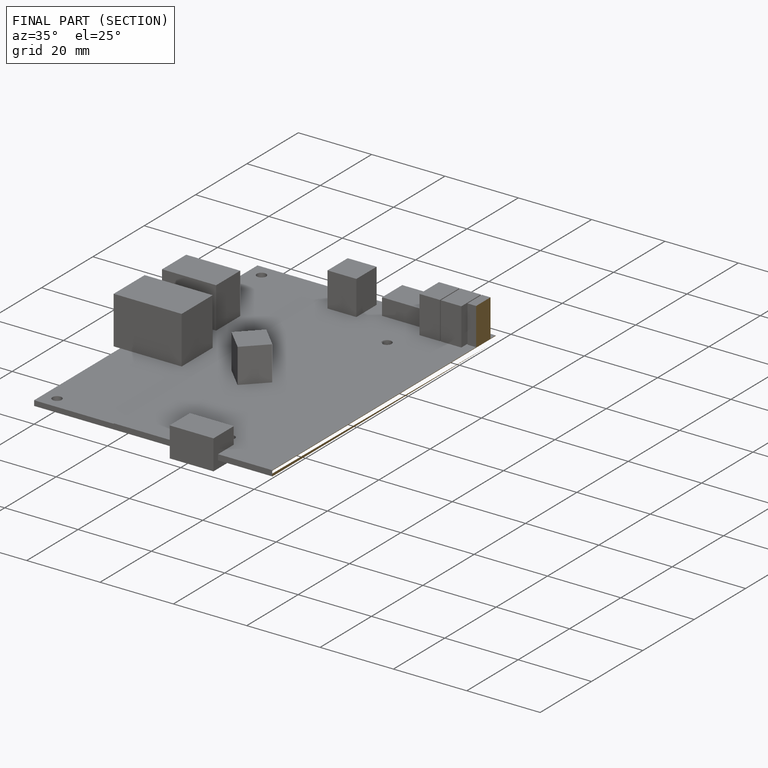
[diagram: finished part — half-section view (interior)]
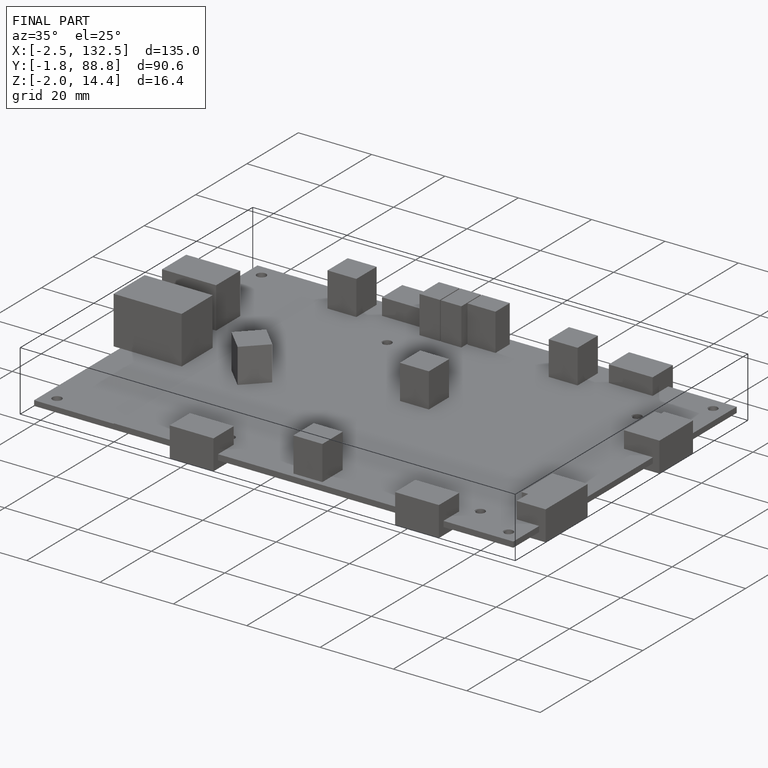
[diagram: finished part — iso view with bounding-box wireframe]
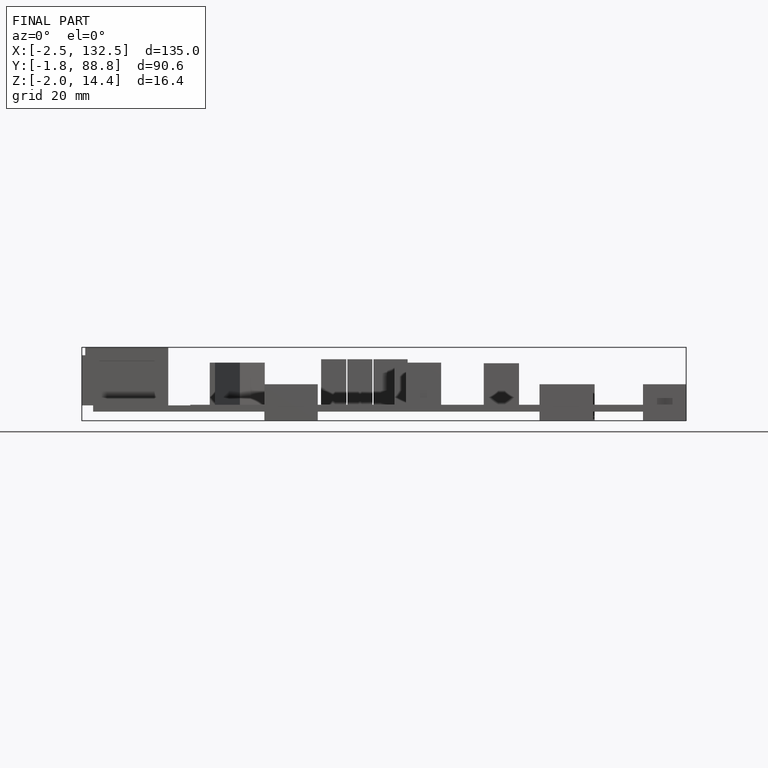
[diagram: finished part — front view with bounding-box wireframe]
